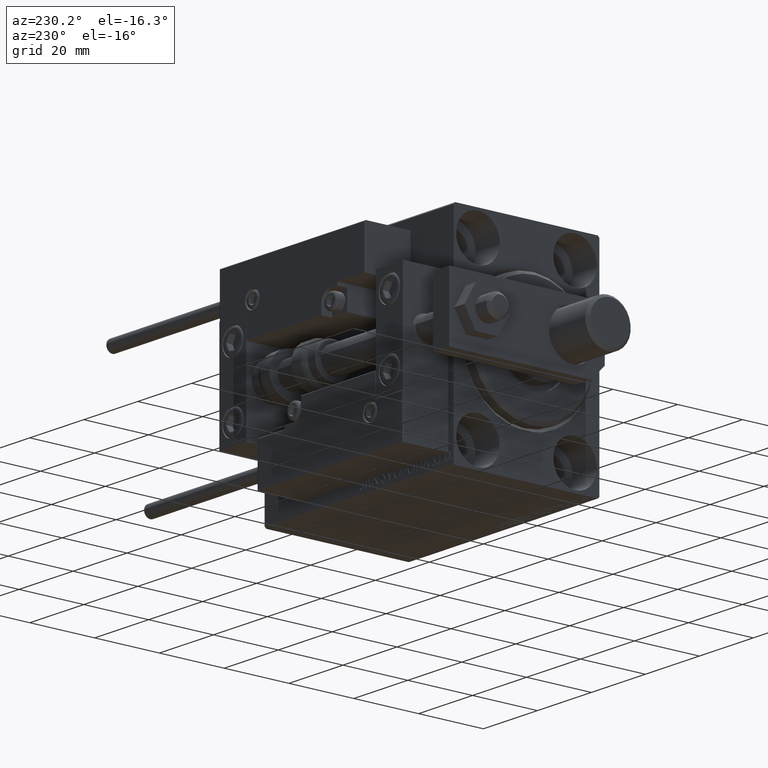
[diagram: clean part render]
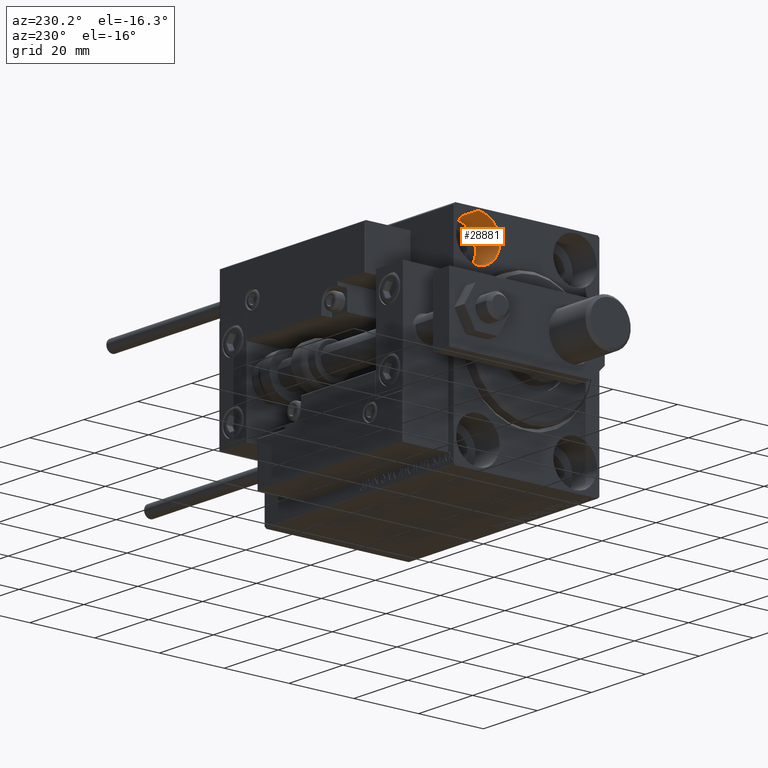
[diagram: same view with one face highlighted and labeled with its STEP entity id]
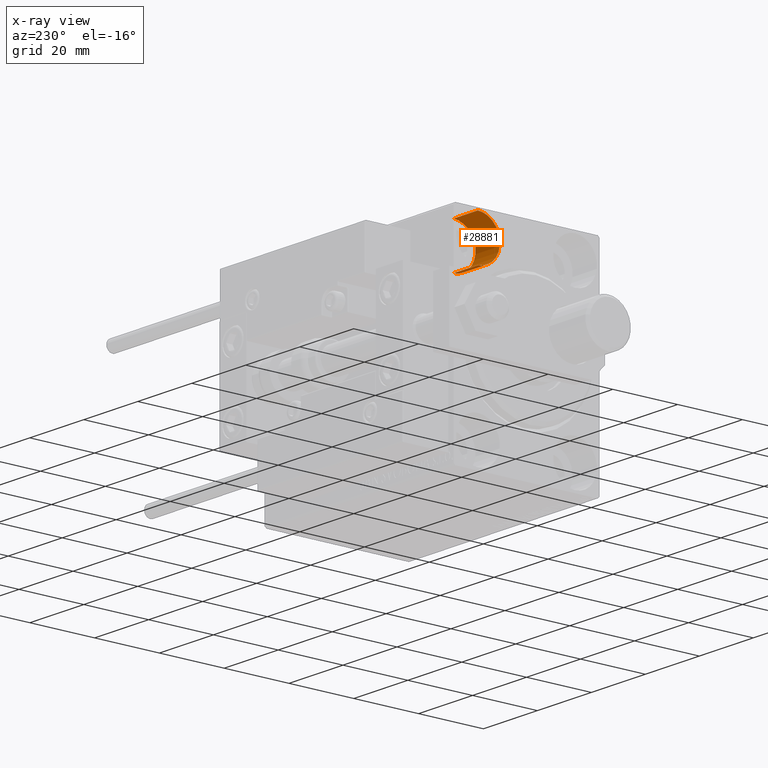
[diagram: x-ray of the same camera — body ghosted, the highlighted face saturated]
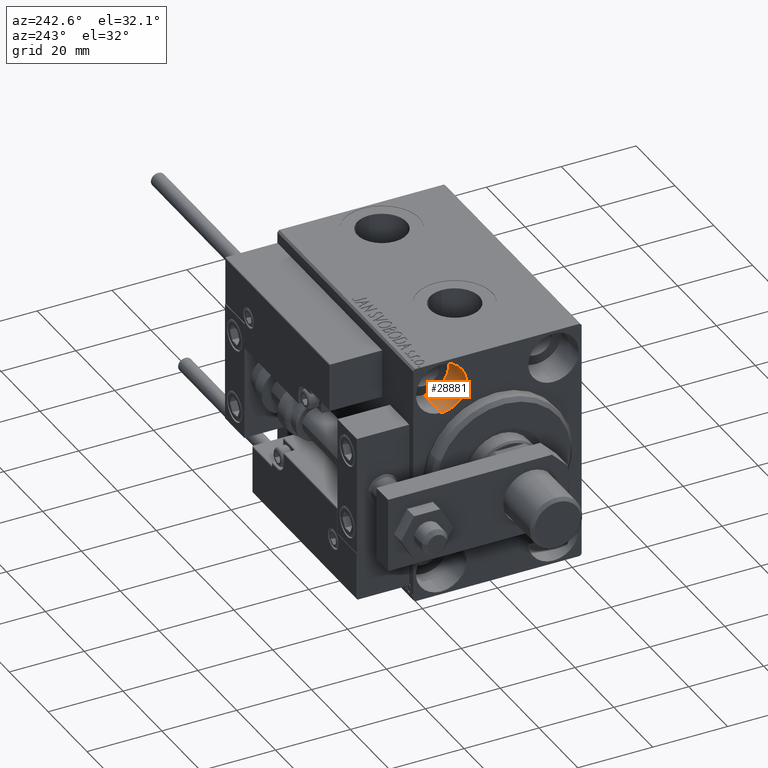
[diagram: same view with one face highlighted and labeled with its STEP entity id]
A machine part, auxiliary view. The second image highlights one B-rep face of the part: STEP entity #28881.
The next image is the same camera in x-ray: the body ghosted, the highlighted face saturated — about 2% of this face is hidden behind the body in this view.
A second angle (auxiliary view) of the same face is appended — the face is thin or edge-on in the first view.
In plain terms, the highlighted cylindrical surface (edge-blend (fillet) strip) has radius 6.75 mm, axis along (-1, -0, -0).
Its self-contained STEP definition (entity closure, byte-faithful):
#841 = AXIS2_PLACEMENT_3D ( 'NONE', #39071, #1554, #24691 ) ;
#1332 = CARTESIAN_POINT ( 'NONE',  ( 9.000000000000000000, 15.00000000000000355, 31.75000000000000000 ) ) ;
#1554 = DIRECTION ( 'NONE',  ( -1.000000000000000000, -0.000000000000000000, -0.000000000000000000 ) ) ;
#4274 = EDGE_CURVE ( 'NONE', #14746, #24639, #19437, .T. ) ;
#4950 = LINE ( 'NONE', #1332, #49277 ) ;
#6213 = CARTESIAN_POINT ( 'NONE',  ( 9.000000000000000000, 15.00000000000000355, 31.75000000000000000 ) ) ;
#7500 = ORIENTED_EDGE ( 'NONE', *, *, #4274, .F. ) ;
#9912 = CARTESIAN_POINT ( 'NONE',  ( 0.000000000000000000, 15.00000000000000355, 31.75000000000000000 ) ) ;
#11269 = EDGE_LOOP ( 'NONE', ( #7500, #24574, #26191, #46780 ) ) ;
#13296 = CARTESIAN_POINT ( 'NONE',  ( 9.000000000000000000, 15.00000000000000355, 25.00000000000000000 ) ) ;
#14746 = VERTEX_POINT ( 'NONE', #47800 ) ;
#15825 = DIRECTION ( 'NONE',  ( 0.000000000000000000, 0.000000000000000000, 1.000000000000000000 ) ) ;
#16755 = VECTOR ( 'NONE', #20436, 1000.000000000000000 ) ;
#17016 = DIRECTION ( 'NONE',  ( -1.000000000000000000, -0.000000000000000000, -0.000000000000000000 ) ) ;
#19437 = CIRCLE ( 'NONE', #38308, 6.749999999999999112 ) ;
#20436 = DIRECTION ( 'NONE',  ( -1.000000000000000000, -0.000000000000000000, -0.000000000000000000 ) ) ;
#22974 = CIRCLE ( 'NONE', #31170, 6.749999999999999112 ) ;
#24281 = LINE ( 'NONE', #48124, #16755 ) ;
#24557 = CARTESIAN_POINT ( 'NONE',  ( 0.000000000000000000, 15.00000000000000355, 25.00000000000000000 ) ) ;
#24574 = ORIENTED_EDGE ( 'NONE', *, *, #49043, .T. ) ;
#24639 = VERTEX_POINT ( 'NONE', #6213 ) ;
#24691 = DIRECTION ( 'NONE',  ( 0.000000000000000000, 0.000000000000000000, 1.000000000000000000 ) ) ;
#25368 = DIRECTION ( 'NONE',  ( -1.000000000000000000, 0.000000000000000000, 0.000000000000000000 ) ) ;
#26191 = ORIENTED_EDGE ( 'NONE', *, *, #27571, .T. ) ;
#27275 = CYLINDRICAL_SURFACE ( 'NONE', #841, 6.749999999999999112 ) ;
#27571 = EDGE_CURVE ( 'NONE', #46655, #35996, #22974, .T. ) ;
#27815 = CARTESIAN_POINT ( 'NONE',  ( 0.000000000000000000, 15.00000000000000355, 18.25000000000000355 ) ) ;
#28881 = ADVANCED_FACE ( 'NONE', ( #31123 ), #27275, .F. ) ;
#31123 = FACE_OUTER_BOUND ( 'NONE', #11269, .T. ) ;
#31170 = AXIS2_PLACEMENT_3D ( 'NONE', #24557, #40209, #15825 ) ;
#31608 = EDGE_CURVE ( 'NONE', #24639, #35996, #4950, .T. ) ;
#35996 = VERTEX_POINT ( 'NONE', #9912 ) ;
#36681 = DIRECTION ( 'NONE',  ( 0.000000000000000000, 0.000000000000000000, 1.000000000000000000 ) ) ;
#38308 = AXIS2_PLACEMENT_3D ( 'NONE', #13296, #25368, #36681 ) ;
#39071 = CARTESIAN_POINT ( 'NONE',  ( 9.000000000000000000, 15.00000000000000355, 25.00000000000000000 ) ) ;
#40209 = DIRECTION ( 'NONE',  ( -1.000000000000000000, 0.000000000000000000, 0.000000000000000000 ) ) ;
#46655 = VERTEX_POINT ( 'NONE', #27815 ) ;
#46780 = ORIENTED_EDGE ( 'NONE', *, *, #31608, .F. ) ;
#47800 = CARTESIAN_POINT ( 'NONE',  ( 9.000000000000000000, 15.00000000000000355, 18.25000000000000355 ) ) ;
#48124 = CARTESIAN_POINT ( 'NONE',  ( 9.000000000000000000, 15.00000000000000355, 18.25000000000000355 ) ) ;
#49043 = EDGE_CURVE ( 'NONE', #14746, #46655, #24281, .T. ) ;
#49277 = VECTOR ( 'NONE', #17016, 1000.000000000000000 ) ;